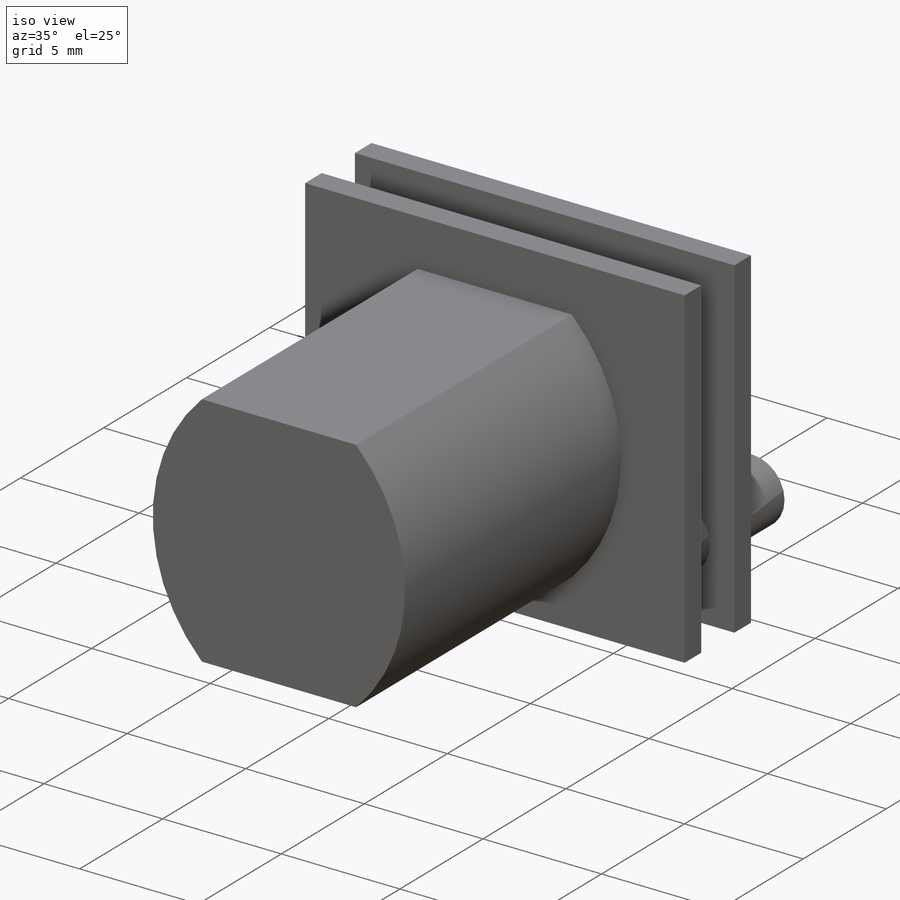
[diagram: iso view]
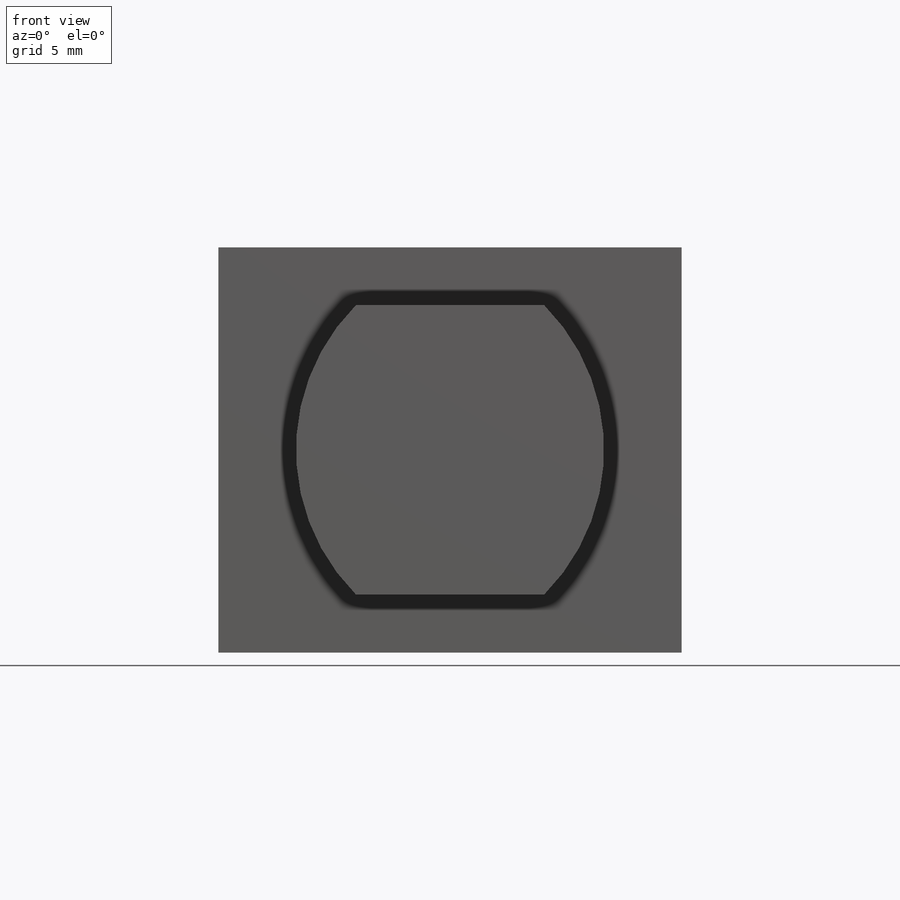
[diagram: front view]
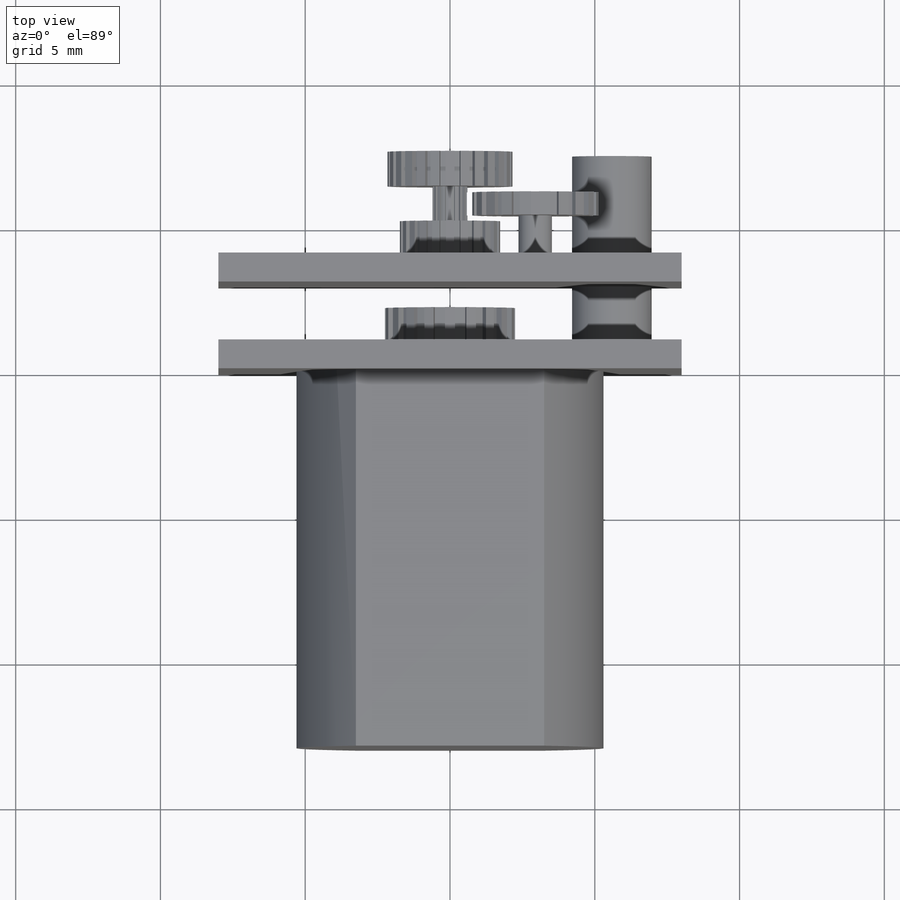
[diagram: top view]
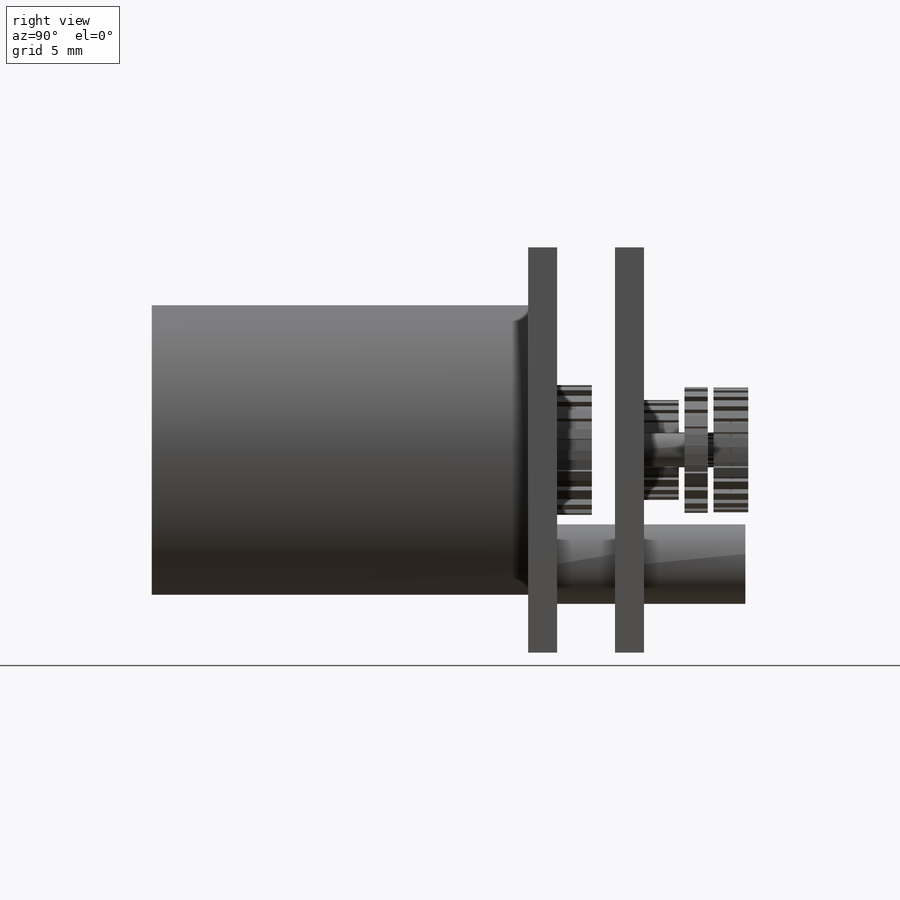
[diagram: right view]
SOLIDWORKS PART (.sldprt)
format: sldprt  version: not decoded by parser v0  size: 984,576 bytes
history: native  units: mm
features: sketch x17, extrude x11, cut_extrude x6, material x1 (+13 scaffold rows collapsed)
feature tree (48):
  scaffold x13  (default folders/planes/origin — collapsed)
  material  "Material <not specified>"
  sketch  "Sketch1"  dims[D1=6.5mm D2=10.0mm]
  extrude  "Extrude1"  Depth=13mm
  sketch  "Sketch2"  dims[D1=8.0mm D2=7.0mm]
  extrude  "Extrude2"  Depth=1mm
  sketch  "Sketch3"
  extrude  "Extrude3"  Depth=1.2mm
  sketch  "Sketch4"  dims[D1=0.5mm D2=0.4mm]
  cut_extrude  "Extrude4"  Depth=1.2mm
  sketch  "Sketch5"
  extrude  "Extrude5"  Depth=2mm
  sketch  "Sketch6"
  extrude  "Extrude6"  Depth=1mm
  sketch  "Sketch7"
  extrude  "Extrude7"  Depth=3.5mm
  sketch  "Sketch8"
  extrude  "Extrude8"  Depth=1.2mm
  sketch  "Sketch9"
  cut_extrude  "Extrude9"  Depth=1.2mm
  sketch  "Sketch10"
  cut_extrude  "Extrude10"  Depth=1.2mm
  sketch  "Sketch11"
  extrude  "Extrude11"  Depth=1.2mm
  sketch  "Sketch12"
  cut_extrude  "Extrude12"  Depth=1.2mm
  sketch  "Sketch13"
  extrude  "Extrude13"  Depth=1.2mm
  sketch  "Sketch14"
  cut_extrude  "Extrude14"  Depth=1.2mm
  sketch  "Sketch15"
  extrude  "Extrude15"  Depth=1.4mm
  sketch  "Sketch16"
  extrude  "Extrude16"  Depth=0.8mm
  sketch  "Sketch17"
  cut_extrude  "Extrude18"  Depth=0.8mm
decode coverage: 20 of 34 modeling features carry decoded parameters
note: suppression state not decoded; provenance and decode notes live in map.json
